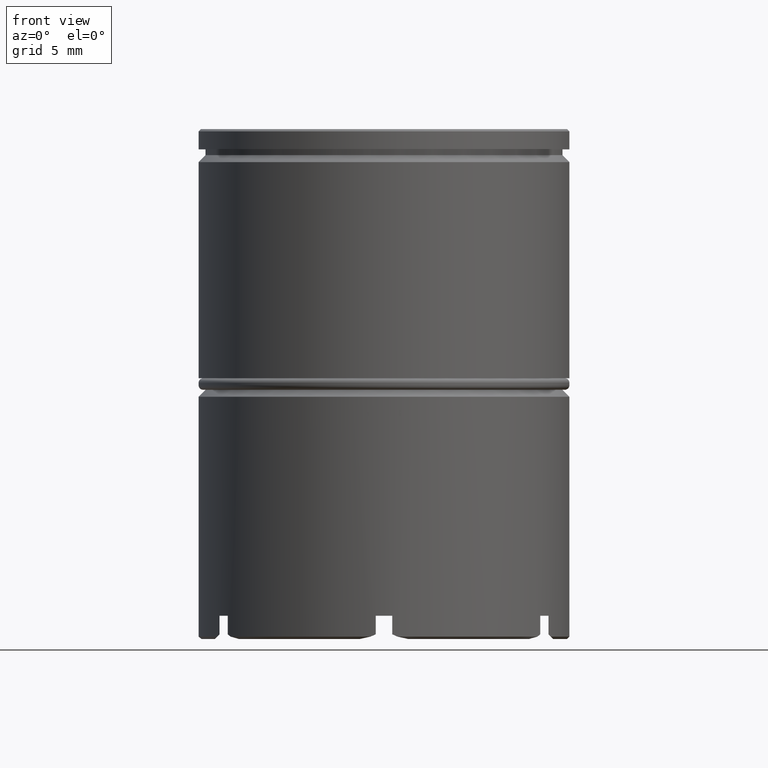
[diagram: clean part render]
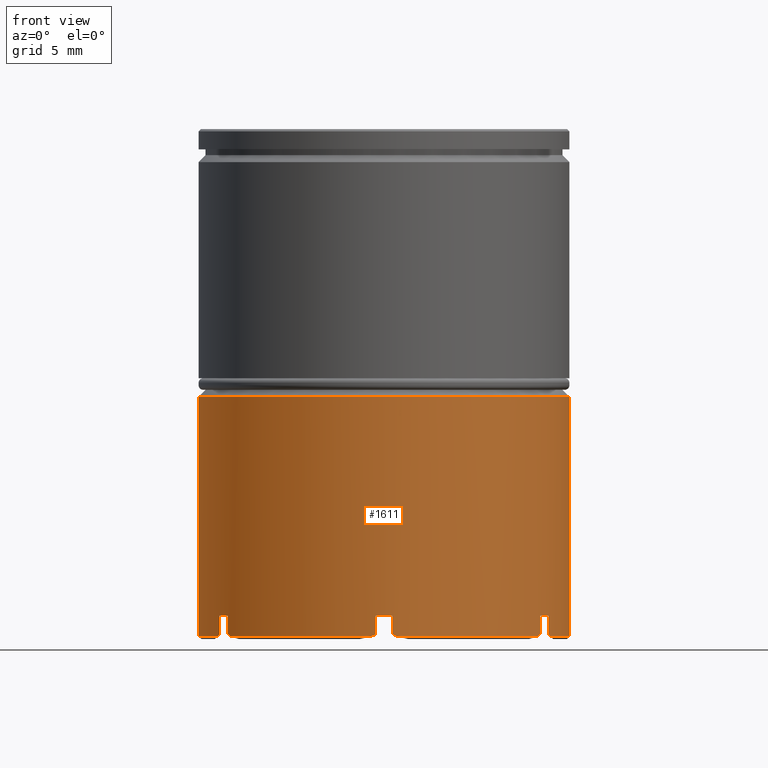
[diagram: same view with one face highlighted and labeled with its STEP entity id]
A machine part, front view. The second image highlights one B-rep face of the part: STEP entity #1611.
In plain terms, the highlighted cylindrical surface (partial cylindrical patch) has radius 8 mm, axis along (-0, -0, 1).
Its self-contained STEP definition (entity closure, byte-faithful):
#3 = LINE ( 'NONE', #379, #791 ) ;
#18 = VERTEX_POINT ( 'NONE', #1364 ) ;
#24 = CARTESIAN_POINT ( 'NONE',  ( -0.4317007308678221800, -7.988689603373718917, -21.83425850490418085 ) ) ;
#30 = EDGE_CURVE ( 'NONE', #1593, #1501, #3, .T. ) ;
#33 = AXIS2_PLACEMENT_3D ( 'NONE', #1105, #983, #1614 ) ;
#36 = VECTOR ( 'NONE', #1426, 1000.000000000000000 ) ;
#37 = CARTESIAN_POINT ( 'NONE',  ( 0.3574305019310988207, -7.992011225986190404, 0.000000000000000000 ) ) ;
#38 = AXIS2_PLACEMENT_3D ( 'NONE', #195, #50, #1326 ) ;
#50 = DIRECTION ( 'NONE',  ( -0.000000000000000000, -0.000000000000000000, 1.000000000000000000 ) ) ;
#60 = CIRCLE ( 'NONE', #993, 8.000000000000000000 ) ;
#67 = LINE ( 'NONE', #717, #1304 ) ;
#69 = CARTESIAN_POINT ( 'NONE',  ( 6.742569498068905709, -4.305549507752848726, -20.99999999999999645 ) ) ;
#70 = ORIENTED_EDGE ( 'NONE', *, *, #925, .F. ) ;
#83 = CARTESIAN_POINT ( 'NONE',  ( 0.000000000000000000, 0.000000000000000000, -20.99999999999999645 ) ) ;
#89 = AXIS2_PLACEMENT_3D ( 'NONE', #83, #702, #573 ) ;
#100 = CARTESIAN_POINT ( 'NONE',  ( 0.000000000000000000, 0.000000000000000000, -20.99999999999999645 ) ) ;
#120 = ORIENTED_EDGE ( 'NONE', *, *, #1453, .T. ) ;
#122 = DIRECTION ( 'NONE',  ( -0.000000000000000000, -0.000000000000000000, 1.000000000000000000 ) ) ;
#133 = EDGE_CURVE ( 'NONE', #1237, #1219, #1495, .T. ) ;
#154 = EDGE_CURVE ( 'NONE', #334, #1365, #1144, .T. ) ;
#157 = VERTEX_POINT ( 'NONE', #1034 ) ;
#166 = CIRCLE ( 'NONE', #1043, 8.000000000000000000 ) ;
#178 = ORIENTED_EDGE ( 'NONE', *, *, #921, .F. ) ;
#190 =( BOUNDED_CURVE ( )  B_SPLINE_CURVE ( 3, ( #1063, #225, #1214, #1054 ),
 .UNSPECIFIED., .F., .T. ) 
 B_SPLINE_CURVE_WITH_KNOTS ( ( 4, 4 ),
 ( 2.662687568714985353, 2.690565841793532531 ),
 .UNSPECIFIED. ) 
 CURVE ( )  GEOMETRIC_REPRESENTATION_ITEM ( )  RATIONAL_B_SPLINE_CURVE ( ( 1.000000000000000000, 0.9999352345395148278, 0.9999352345395148278, 1.000000000000000000 ) ) 
 REPRESENTATION_ITEM ( '' )  );
#195 = CARTESIAN_POINT ( 'NONE',  ( 0.000000000000000000, 0.000000000000000000, -21.90000000000000213 ) ) ;
#198 = EDGE_CURVE ( 'NONE', #320, #735, #190, .T. ) ;
#199 = VERTEX_POINT ( 'NONE', #69 ) ;
#209 = EDGE_LOOP ( 'NONE', ( #420, #981, #616, #178, #1109, #1077, #606, #753, #230, #590, #440, #1218, #832, #120, #1051, #70, #1155, #571, #611, #612, #1395, #1333 ) ) ;
#210 = VERTEX_POINT ( 'NONE', #1073 ) ;
#217 = AXIS2_PLACEMENT_3D ( 'NONE', #848, #1343, #728 ) ;
#219 = CARTESIAN_POINT ( 'NONE',  ( 6.742569498068905709, -4.305549507752852278, 0.000000000000000000 ) ) ;
#225 = CARTESIAN_POINT ( 'NONE',  ( 0.4317007308678199595, -7.988689603373717141, -21.83425850490418085 ) ) ;
#229 = DIRECTION ( 'NONE',  ( -0.000000000000000000, -0.000000000000000000, 1.000000000000000000 ) ) ;
#230 = ORIENTED_EDGE ( 'NONE', *, *, #1308, .T. ) ;
#233 = CARTESIAN_POINT ( 'NONE',  ( 8.000000000000000000, 0.000000000000000000, 0.000000000000000000 ) ) ;
#269 = DIRECTION ( 'NONE',  ( -0.000000000000000000, -0.000000000000000000, 1.000000000000000000 ) ) ;
#291 = CARTESIAN_POINT ( 'NONE',  ( -7.134258504904173570, -3.620481001923025133, -21.83425850490418085 ) ) ;
#293 = CARTESIAN_POINT ( 'NONE',  ( 7.100000000000005862, -3.686461718233339901, -21.80000000000000782 ) ) ;
#309 = CARTESIAN_POINT ( 'NONE',  ( -6.742569498068910150, -4.305549507752845173, -21.80000000000000426 ) ) ;
#320 = VERTEX_POINT ( 'NONE', #555 ) ;
#330 = VERTEX_POINT ( 'NONE', #943 ) ;
#334 = VERTEX_POINT ( 'NONE', #309 ) ;
#346 = CARTESIAN_POINT ( 'NONE',  ( 6.742569498068905709, -4.305549507752852278, -21.80000000000000426 ) ) ;
#365 = CARTESIAN_POINT ( 'NONE',  ( 6.619933774108296198, -4.491823329831693634, -21.90000000000000213 ) ) ;
#375 = DIRECTION ( 'NONE',  ( 1.000000000000000000, 0.000000000000000000, 0.000000000000000000 ) ) ;
#379 = CARTESIAN_POINT ( 'NONE',  ( -8.000000000000000000, 9.797174393178825657E-16, 0.000000000000000000 ) ) ;
#394 = CARTESIAN_POINT ( 'NONE',  ( -6.742569498068910150, -4.305549507752845173, 0.000000000000000000 ) ) ;
#395 =( BOUNDED_CURVE ( )  B_SPLINE_CURVE ( 3, ( #816, #556, #24, #398 ),
 .UNSPECIFIED., .F., .T. ) 
 B_SPLINE_CURVE_WITH_KNOTS ( ( 4, 4 ),
 ( 3.592619465386053257, 3.620497738464601767 ),
 .UNSPECIFIED. ) 
 CURVE ( )  GEOMETRIC_REPRESENTATION_ITEM ( )  RATIONAL_B_SPLINE_CURVE ( ( 1.000000000000000000, 0.9999352345395148278, 0.9999352345395148278, 1.000000000000000000 ) ) 
 REPRESENTATION_ITEM ( '' )  );
#398 = CARTESIAN_POINT ( 'NONE',  ( -0.3574305019310979881, -7.992011225986190404, -21.80000000000000426 ) ) ;
#408 = CIRCLE ( 'NONE', #38, 8.000000000000000000 ) ;
#420 = ORIENTED_EDGE ( 'NONE', *, *, #30, .F. ) ;
#425 = EDGE_CURVE ( 'NONE', #1219, #1076, #514, .T. ) ;
#431 = CARTESIAN_POINT ( 'NONE',  ( 0.5800662258917104186, -7.978942484664226065, -21.90000000000000213 ) ) ;
#440 = ORIENTED_EDGE ( 'NONE', *, *, #1553, .T. ) ;
#472 = CARTESIAN_POINT ( 'NONE',  ( -6.702557774036360883, -4.368208601450698225, -21.83425850490417730 ) ) ;
#503 = CARTESIAN_POINT ( 'NONE',  ( 6.661676551691631865, -4.430303897107397582, -21.86759399722601671 ) ) ;
#514 = CIRCLE ( 'NONE', #33, 8.000000000000000000 ) ;
#515 = CARTESIAN_POINT ( 'NONE',  ( 7.200000000000001066, -3.487119154832535983, -21.90000000000000213 ) ) ;
#524 = DIRECTION ( 'NONE',  ( -0.000000000000000000, -0.000000000000000000, 1.000000000000000000 ) ) ;
#535 = EDGE_CURVE ( 'NONE', #1076, #895, #907, .T. ) ;
#537 = CARTESIAN_POINT ( 'NONE',  ( 7.167593997226017422, -3.554029177006380547, -21.86759399722601671 ) ) ;
#543 = CARTESIAN_POINT ( 'NONE',  ( 7.200000000000001066, -3.487119154832535983, -21.90000000000000213 ) ) ;
#547 = CIRCLE ( 'NONE', #217, 8.000000000000000000 ) ;
#555 = CARTESIAN_POINT ( 'NONE',  ( 0.3574305019310988207, -7.992011225986190404, -21.80000000000000426 ) ) ;
#556 = CARTESIAN_POINT ( 'NONE',  ( -0.5059174455343968813, -7.984333074113772355, -21.86759399722601671 ) ) ;
#558 = EDGE_CURVE ( 'NONE', #18, #157, #1529, .T. ) ;
#571 = ORIENTED_EDGE ( 'NONE', *, *, #999, .F. ) ;
#573 = DIRECTION ( 'NONE',  ( -1.000000000000000000, -1.243449787580175325E-14, 0.000000000000000000 ) ) ;
#590 = ORIENTED_EDGE ( 'NONE', *, *, #558, .F. ) ;
#591 = CARTESIAN_POINT ( 'NONE',  ( -0.5800662258917183012, -7.978942484664227841, -21.90000000000000213 ) ) ;
#606 = ORIENTED_EDGE ( 'NONE', *, *, #768, .T. ) ;
#608 = EDGE_CURVE ( 'NONE', #1593, #987, #938, .T. ) ;
#611 = ORIENTED_EDGE ( 'NONE', *, *, #133, .T. ) ;
#612 = ORIENTED_EDGE ( 'NONE', *, *, #425, .T. ) ;
#616 = ORIENTED_EDGE ( 'NONE', *, *, #709, .T. ) ;
#618 = DIRECTION ( 'NONE',  ( 0.000000000000000000, 0.000000000000000000, -1.000000000000000000 ) ) ;
#642 = DIRECTION ( 'NONE',  ( 0.000000000000000000, 0.000000000000000000, -1.000000000000000000 ) ) ;
#647 = CARTESIAN_POINT ( 'NONE',  ( 0.000000000000000000, 0.000000000000000000, -21.90000000000000213 ) ) ;
#673 = LINE ( 'NONE', #37, #36 ) ;
#674 = CARTESIAN_POINT ( 'NONE',  ( 7.100000000000005862, -3.686461718233339901, -21.80000000000000782 ) ) ;
#676 = FACE_OUTER_BOUND ( 'NONE', #209, .T. ) ;
#699 = CARTESIAN_POINT ( 'NONE',  ( -6.661676551691630976, -4.430303897107400246, -21.86759399722601671 ) ) ;
#702 = DIRECTION ( 'NONE',  ( -0.000000000000000000, -0.000000000000000000, 1.000000000000000000 ) ) ;
#709 = EDGE_CURVE ( 'NONE', #987, #1573, #1080, .T. ) ;
#713 = CIRCLE ( 'NONE', #89, 8.000000000000000000 ) ;
#717 = CARTESIAN_POINT ( 'NONE',  ( 7.100000000000005862, -3.686461718233339901, 0.000000000000000000 ) ) ;
#728 = DIRECTION ( 'NONE',  ( -1.000000000000000000, 0.000000000000000000, 0.000000000000000000 ) ) ;
#733 = DIRECTION ( 'NONE',  ( -0.000000000000000000, -0.000000000000000000, 1.000000000000000000 ) ) ;
#735 = VERTEX_POINT ( 'NONE', #431 ) ;
#753 = ORIENTED_EDGE ( 'NONE', *, *, #808, .T. ) ;
#754 = DIRECTION ( 'NONE',  ( 0.000000000000000000, 0.000000000000000000, -1.000000000000000000 ) ) ;
#766 = VECTOR ( 'NONE', #618, 1000.000000000000000 ) ;
#768 = EDGE_CURVE ( 'NONE', #334, #838, #1414, .T. ) ;
#784 = CARTESIAN_POINT ( 'NONE',  ( 6.742569498068905709, -4.305549507752852278, -21.80000000000000426 ) ) ;
#787 = CARTESIAN_POINT ( 'NONE',  ( -7.100000000000004086, -3.686461718233344342, -21.80000000000000782 ) ) ;
#791 = VECTOR ( 'NONE', #229, 1000.000000000000000 ) ;
#804 = CYLINDRICAL_SURFACE ( 'NONE', #1597, 8.000000000000000000 ) ;
#808 = EDGE_CURVE ( 'NONE', #838, #1390, #1544, .T. ) ;
#816 = CARTESIAN_POINT ( 'NONE',  ( -0.5800662258917183012, -7.978942484664227841, -21.90000000000000213 ) ) ;
#821 = CARTESIAN_POINT ( 'NONE',  ( -7.199999999999997513, -3.487119154832545753, -21.90000000000000213 ) ) ;
#832 = ORIENTED_EDGE ( 'NONE', *, *, #198, .T. ) ;
#838 = VERTEX_POINT ( 'NONE', #1068 ) ;
#848 = CARTESIAN_POINT ( 'NONE',  ( 0.000000000000000000, 0.000000000000000000, -20.99999999999999645 ) ) ;
#858 = DIRECTION ( 'NONE',  ( -0.000000000000000000, -0.000000000000000000, 1.000000000000000000 ) ) ;
#895 = VERTEX_POINT ( 'NONE', #973 ) ;
#907 = LINE ( 'NONE', #233, #1118 ) ;
#917 = CARTESIAN_POINT ( 'NONE',  ( -8.000000000000000000, 9.797174393178825657E-16, -21.90000000000000213 ) ) ;
#921 = EDGE_CURVE ( 'NONE', #1271, #1573, #1245, .T. ) ;
#925 = EDGE_CURVE ( 'NONE', #199, #1613, #1011, .T. ) ;
#938 = CIRCLE ( 'NONE', #1282, 8.000000000000000000 ) ;
#943 = CARTESIAN_POINT ( 'NONE',  ( 6.619933774108296198, -4.491823329831693634, -21.90000000000000213 ) ) ;
#955 = CARTESIAN_POINT ( 'NONE',  ( -6.742569498068911038, -4.305549507752841620, -20.99999999999999645 ) ) ;
#972 = CARTESIAN_POINT ( 'NONE',  ( 8.000000000000000000, 0.000000000000000000, -21.90000000000000213 ) ) ;
#973 = CARTESIAN_POINT ( 'NONE',  ( 8.000000000000000000, 0.000000000000000000, -11.54999999999999893 ) ) ;
#981 = ORIENTED_EDGE ( 'NONE', *, *, #608, .T. ) ;
#983 = DIRECTION ( 'NONE',  ( -0.000000000000000000, -0.000000000000000000, 1.000000000000000000 ) ) ;
#985 = CARTESIAN_POINT ( 'NONE',  ( 0.000000000000000000, 0.000000000000000000, -11.54999999999999893 ) ) ;
#987 = VERTEX_POINT ( 'NONE', #1447 ) ;
#993 = AXIS2_PLACEMENT_3D ( 'NONE', #100, #1030, #1527 ) ;
#999 = EDGE_CURVE ( 'NONE', #1237, #1627, #67, .T. ) ;
#1011 = LINE ( 'NONE', #219, #1020 ) ;
#1020 = VECTOR ( 'NONE', #1517, 1000.000000000000000 ) ;
#1022 = DIRECTION ( 'NONE',  ( -0.000000000000000000, -0.000000000000000000, 1.000000000000000000 ) ) ;
#1026 = DIRECTION ( 'NONE',  ( -1.000000000000000000, 0.000000000000000000, 0.000000000000000000 ) ) ;
#1030 = DIRECTION ( 'NONE',  ( -0.000000000000000000, -0.000000000000000000, 1.000000000000000000 ) ) ;
#1033 = CARTESIAN_POINT ( 'NONE',  ( -7.100000000000004086, -3.686461718233344342, -20.99999999999999645 ) ) ;
#1034 = CARTESIAN_POINT ( 'NONE',  ( -0.3574305019310979881, -7.992011225986190404, -21.80000000000000426 ) ) ;
#1043 = AXIS2_PLACEMENT_3D ( 'NONE', #985, #642, #375 ) ;
#1051 = ORIENTED_EDGE ( 'NONE', *, *, #1170, .T. ) ;
#1054 = CARTESIAN_POINT ( 'NONE',  ( 0.5800662258917104186, -7.978942484664226065, -21.90000000000000213 ) ) ;
#1063 = CARTESIAN_POINT ( 'NONE',  ( 0.3574305019310988207, -7.992011225986190404, -21.80000000000000426 ) ) ;
#1068 = CARTESIAN_POINT ( 'NONE',  ( -6.619933774108292646, -4.491823329831698075, -21.90000000000000213 ) ) ;
#1073 = CARTESIAN_POINT ( 'NONE',  ( 0.3574305019310975440, -7.992011225986188627, -20.99999999999999645 ) ) ;
#1076 = VERTEX_POINT ( 'NONE', #972 ) ;
#1077 = ORIENTED_EDGE ( 'NONE', *, *, #154, .F. ) ;
#1080 =( BOUNDED_CURVE ( )  B_SPLINE_CURVE ( 3, ( #821, #1161, #291, #1309 ),
 .UNSPECIFIED., .F., .T. ) 
 B_SPLINE_CURVE_WITH_KNOTS ( ( 4, 4 ),
 ( 3.592619465386055921, 3.620497738464601767 ),
 .UNSPECIFIED. ) 
 CURVE ( )  GEOMETRIC_REPRESENTATION_ITEM ( )  RATIONAL_B_SPLINE_CURVE ( ( 1.000000000000000000, 0.9999352345395148278, 0.9999352345395148278, 1.000000000000000000 ) ) 
 REPRESENTATION_ITEM ( '' )  );
#1105 = CARTESIAN_POINT ( 'NONE',  ( 0.000000000000000000, 0.000000000000000000, -21.90000000000000213 ) ) ;
#1109 = ORIENTED_EDGE ( 'NONE', *, *, #1479, .T. ) ;
#1110 = CARTESIAN_POINT ( 'NONE',  ( -8.000000000000000000, 9.797174393178825657E-16, -11.54999999999999893 ) ) ;
#1118 = VECTOR ( 'NONE', #122, 1000.000000000000000 ) ;
#1136 = CARTESIAN_POINT ( 'NONE',  ( -7.100000000000004086, -3.686461718233344342, 0.000000000000000000 ) ) ;
#1144 = LINE ( 'NONE', #394, #1226 ) ;
#1155 = ORIENTED_EDGE ( 'NONE', *, *, #1376, .T. ) ;
#1161 = CARTESIAN_POINT ( 'NONE',  ( -7.167593997226015645, -3.554029177006384543, -21.86759399722601671 ) ) ;
#1164 = EDGE_CURVE ( 'NONE', #895, #1501, #166, .T. ) ;
#1170 = EDGE_CURVE ( 'NONE', #330, #1613, #1194, .T. ) ;
#1175 = CARTESIAN_POINT ( 'NONE',  ( 7.134258504904174458, -3.620481001923023801, -21.83425850490418085 ) ) ;
#1194 =( BOUNDED_CURVE ( )  B_SPLINE_CURVE ( 3, ( #365, #503, #1362, #346 ),
 .UNSPECIFIED., .F., .T. ) 
 B_SPLINE_CURVE_WITH_KNOTS ( ( 4, 4 ),
 ( 3.592619465386054589, 3.620497738464601323 ),
 .UNSPECIFIED. ) 
 CURVE ( )  GEOMETRIC_REPRESENTATION_ITEM ( )  RATIONAL_B_SPLINE_CURVE ( ( 1.000000000000000000, 0.9999352345395148278, 0.9999352345395148278, 1.000000000000000000 ) ) 
 REPRESENTATION_ITEM ( '' )  );
#1214 = CARTESIAN_POINT ( 'NONE',  ( 0.5059174455343912191, -7.984333074113772355, -21.86759399722602026 ) ) ;
#1218 = ORIENTED_EDGE ( 'NONE', *, *, #1241, .F. ) ;
#1219 = VERTEX_POINT ( 'NONE', #515 ) ;
#1226 = VECTOR ( 'NONE', #269, 1000.000000000000000 ) ;
#1237 = VERTEX_POINT ( 'NONE', #293 ) ;
#1241 = EDGE_CURVE ( 'NONE', #320, #210, #673, .T. ) ;
#1245 = LINE ( 'NONE', #1136, #766 ) ;
#1265 = CARTESIAN_POINT ( 'NONE',  ( 7.100000000000005862, -3.686461718233339901, -20.99999999999999645 ) ) ;
#1271 = VERTEX_POINT ( 'NONE', #1033 ) ;
#1282 = AXIS2_PLACEMENT_3D ( 'NONE', #647, #524, #1026 ) ;
#1294 = CARTESIAN_POINT ( 'NONE',  ( 0.000000000000000000, 0.000000000000000000, 0.000000000000000000 ) ) ;
#1304 = VECTOR ( 'NONE', #858, 1000.000000000000000 ) ;
#1308 = EDGE_CURVE ( 'NONE', #1390, #157, #395, .T. ) ;
#1309 = CARTESIAN_POINT ( 'NONE',  ( -7.100000000000004086, -3.686461718233344342, -21.80000000000000782 ) ) ;
#1321 = DIRECTION ( 'NONE',  ( -1.000000000000000000, 0.000000000000000000, 0.000000000000000000 ) ) ;
#1326 = DIRECTION ( 'NONE',  ( -1.000000000000000000, 0.000000000000000000, 0.000000000000000000 ) ) ;
#1333 = ORIENTED_EDGE ( 'NONE', *, *, #1164, .T. ) ;
#1334 = CARTESIAN_POINT ( 'NONE',  ( -6.619933774108292646, -4.491823329831698075, -21.90000000000000213 ) ) ;
#1343 = DIRECTION ( 'NONE',  ( -0.000000000000000000, -0.000000000000000000, 1.000000000000000000 ) ) ;
#1362 = CARTESIAN_POINT ( 'NONE',  ( 6.702557774036359994, -4.368208601450699113, -21.83425850490418085 ) ) ;
#1364 = CARTESIAN_POINT ( 'NONE',  ( -0.3574305019310940468, -7.992011225986188627, -20.99999999999999645 ) ) ;
#1365 = VERTEX_POINT ( 'NONE', #955 ) ;
#1376 = EDGE_CURVE ( 'NONE', #199, #1627, #713, .T. ) ;
#1390 = VERTEX_POINT ( 'NONE', #591 ) ;
#1395 = ORIENTED_EDGE ( 'NONE', *, *, #535, .T. ) ;
#1414 =( BOUNDED_CURVE ( )  B_SPLINE_CURVE ( 3, ( #1448, #472, #699, #1334 ),
 .UNSPECIFIED., .F., .T. ) 
 B_SPLINE_CURVE_WITH_KNOTS ( ( 4, 4 ),
 ( 2.662687568714984909, 2.690565841793532975 ),
 .UNSPECIFIED. ) 
 CURVE ( )  GEOMETRIC_REPRESENTATION_ITEM ( )  RATIONAL_B_SPLINE_CURVE ( ( 1.000000000000000000, 0.9999352345395148278, 0.9999352345395148278, 1.000000000000000000 ) ) 
 REPRESENTATION_ITEM ( '' )  );
#1426 = DIRECTION ( 'NONE',  ( -0.000000000000000000, -0.000000000000000000, 1.000000000000000000 ) ) ;
#1447 = CARTESIAN_POINT ( 'NONE',  ( -7.199999999999997513, -3.487119154832545753, -21.90000000000000213 ) ) ;
#1448 = CARTESIAN_POINT ( 'NONE',  ( -6.742569498068910150, -4.305549507752845173, -21.80000000000000426 ) ) ;
#1453 = EDGE_CURVE ( 'NONE', #735, #330, #408, .T. ) ;
#1463 = VECTOR ( 'NONE', #754, 1000.000000000000000 ) ;
#1479 = EDGE_CURVE ( 'NONE', #1271, #1365, #547, .T. ) ;
#1495 =( BOUNDED_CURVE ( )  B_SPLINE_CURVE ( 3, ( #674, #1175, #537, #543 ),
 .UNSPECIFIED., .F., .T. ) 
 B_SPLINE_CURVE_WITH_KNOTS ( ( 4, 4 ),
 ( 2.662687568714984465, 2.690565841793531199 ),
 .UNSPECIFIED. ) 
 CURVE ( )  GEOMETRIC_REPRESENTATION_ITEM ( )  RATIONAL_B_SPLINE_CURVE ( ( 1.000000000000000000, 0.9999352345395148278, 0.9999352345395148278, 1.000000000000000000 ) ) 
 REPRESENTATION_ITEM ( '' )  );
#1501 = VERTEX_POINT ( 'NONE', #1110 ) ;
#1510 = CARTESIAN_POINT ( 'NONE',  ( -0.3574305019310979881, -7.992011225986190404, 0.000000000000000000 ) ) ;
#1517 = DIRECTION ( 'NONE',  ( 0.000000000000000000, 0.000000000000000000, -1.000000000000000000 ) ) ;
#1524 = DIRECTION ( 'NONE',  ( 1.000000000000000000, 0.000000000000000000, 0.000000000000000000 ) ) ;
#1527 = DIRECTION ( 'NONE',  ( -1.000000000000000000, 0.000000000000000000, 0.000000000000000000 ) ) ;
#1529 = LINE ( 'NONE', #1510, #1463 ) ;
#1544 = CIRCLE ( 'NONE', #1596, 8.000000000000000000 ) ;
#1553 = EDGE_CURVE ( 'NONE', #18, #210, #60, .T. ) ;
#1573 = VERTEX_POINT ( 'NONE', #787 ) ;
#1591 = CARTESIAN_POINT ( 'NONE',  ( 0.000000000000000000, 0.000000000000000000, -21.90000000000000213 ) ) ;
#1593 = VERTEX_POINT ( 'NONE', #917 ) ;
#1596 = AXIS2_PLACEMENT_3D ( 'NONE', #1591, #733, #1321 ) ;
#1597 = AXIS2_PLACEMENT_3D ( 'NONE', #1294, #1022, #1524 ) ;
#1611 = ADVANCED_FACE ( 'NONE', ( #676 ), #804, .T. ) ;
#1613 = VERTEX_POINT ( 'NONE', #784 ) ;
#1614 = DIRECTION ( 'NONE',  ( -1.000000000000000000, 3.552713678800500929E-15, 0.000000000000000000 ) ) ;
#1627 = VERTEX_POINT ( 'NONE', #1265 ) ;